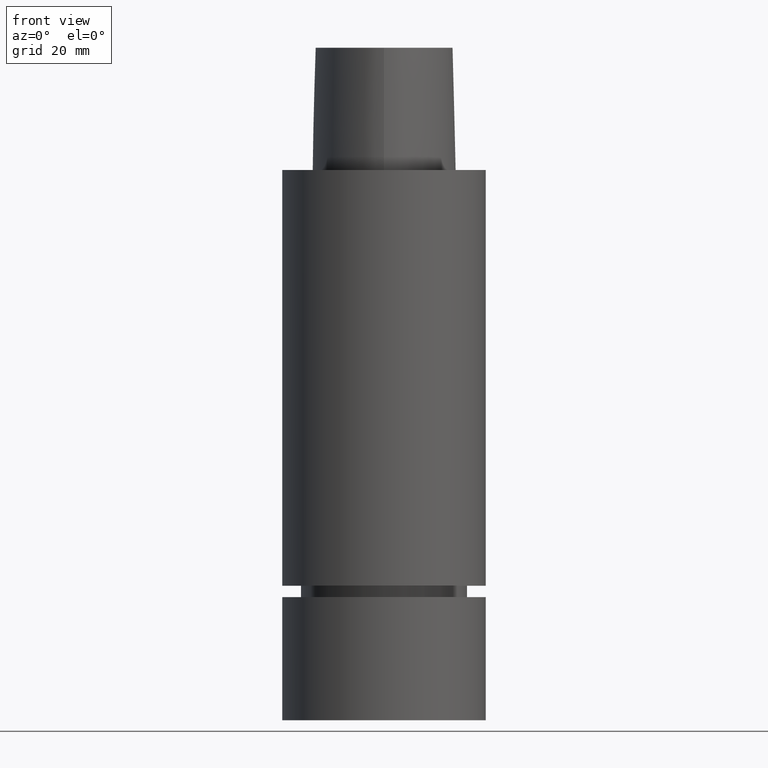
[diagram: clean part render]
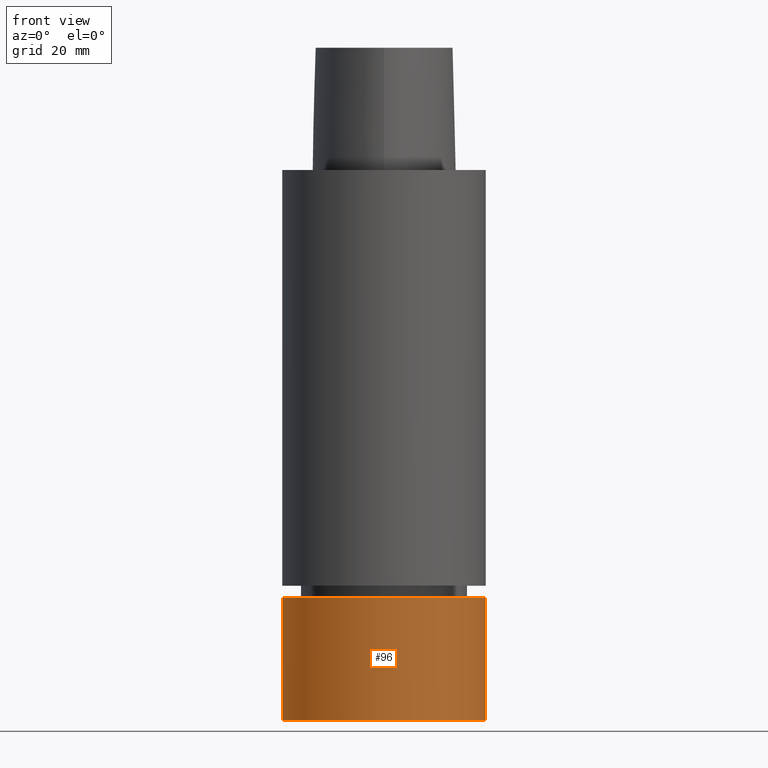
[diagram: same view with one face highlighted and labeled with its STEP entity id]
A machine part, front view. The second image highlights one B-rep face of the part: STEP entity #96.
In plain terms, the highlighted cylindrical surface (bore or boss wall) has radius 25 mm, axis along (0, 0, -1).
Its self-contained STEP definition (entity closure, byte-faithful):
#96=ADVANCED_FACE('Unnamed[1]',(#200,#201),#202,.T.);
#107=EDGE_CURVE('Unnamed[1]',#218,#218,#219,.T.);
#121=EDGE_CURVE('Unnamed[1]',#237,#237,#238,.T.);
#200=FACE_BOUND('',#803,.T.);
#201=FACE_BOUND('',#804,.T.);
#202=CYLINDRICAL_SURFACE('',#805,25.0);
#218=VERTEX_POINT('',#826);
#219=CIRCLE('',#827,25.0);
#237=VERTEX_POINT('',#901);
#238=CIRCLE('',#902,25.0);
#803=EDGE_LOOP('',(#970));
#804=EDGE_LOOP('',(#971));
#805=AXIS2_PLACEMENT_3D('',#972,#973,#974);
#826=CARTESIAN_POINT('',(6.41714922753213E-015,25.0,-104.8));
#827=AXIS2_PLACEMENT_3D('',#990,#991,#992);
#901=CARTESIAN_POINT('',(8.26636589424463E-015,25.0,-135.0));
#902=AXIS2_PLACEMENT_3D('',#1003,#1004,#1005);
#970=ORIENTED_EDGE('',*,*,#121,.F.);
#971=ORIENTED_EDGE('',*,*,#107,.T.);
#972=CARTESIAN_POINT('',(7.34175756088838E-015,1.46835151217768E-014,-119.9));
#973=DIRECTION('',(6.12323399573677E-017,1.22464679914735E-016,-1.0));
#974=DIRECTION('',(-1.23259516440783E-032,1.0,1.22464679914735E-016));
#990=CARTESIAN_POINT('',(6.41714922753213E-015,1.28342984550643E-014,-104.8));
#991=DIRECTION('',(6.12323399573677E-017,1.22464679914735E-016,-1.0));
#992=DIRECTION('',(-1.23259516440783E-032,1.0,1.22464679914735E-016));
#1003=CARTESIAN_POINT('',(8.26636589424463E-015,1.65327317884893E-014,-135.0));
#1004=DIRECTION('',(6.12323399573677E-017,1.22464679914735E-016,-1.0));
#1005=DIRECTION('',(-1.23259516440783E-032,1.0,1.22464679914735E-016));